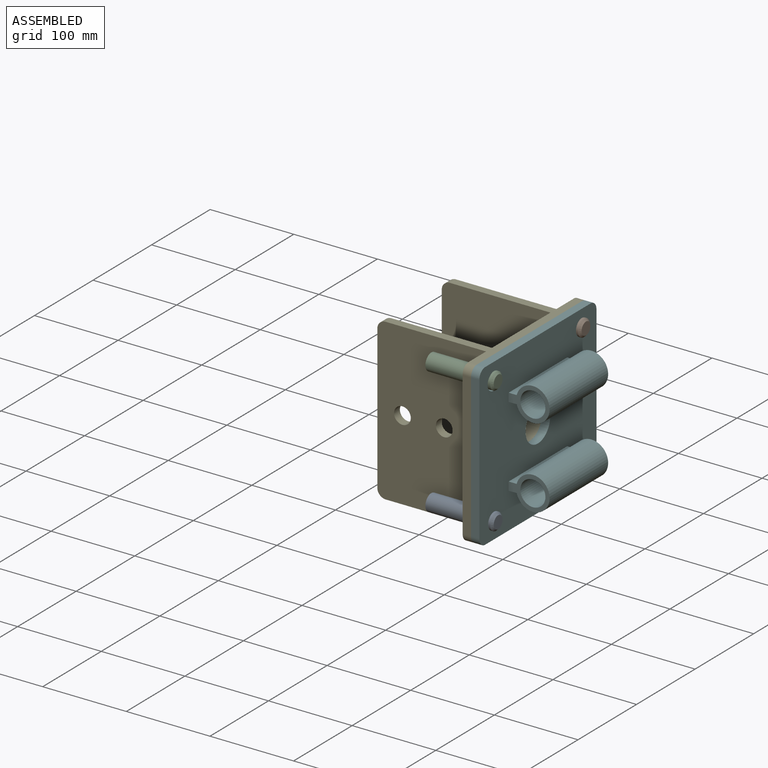
[diagram: assembled view]
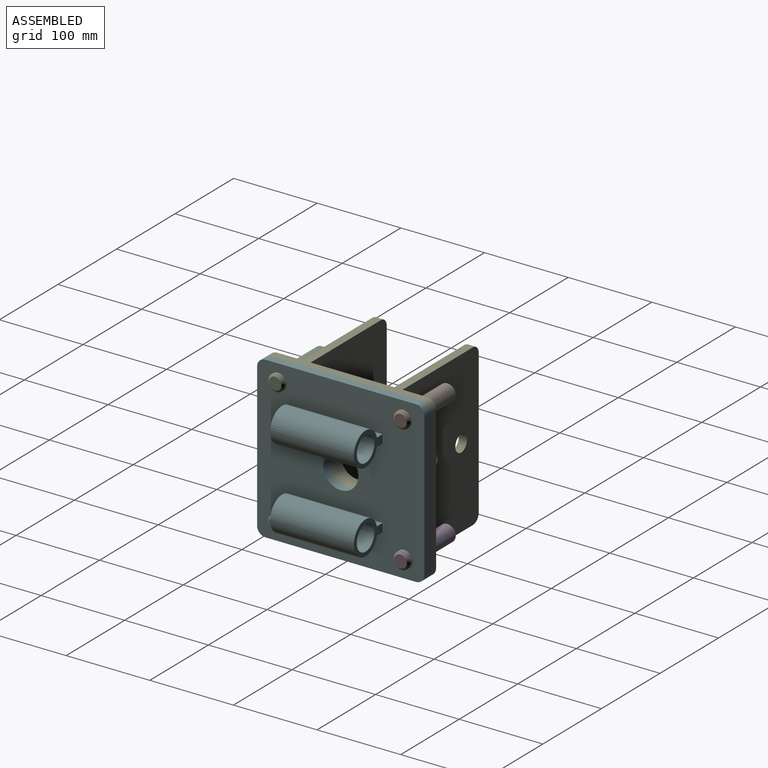
[diagram: assembled view, second angle]
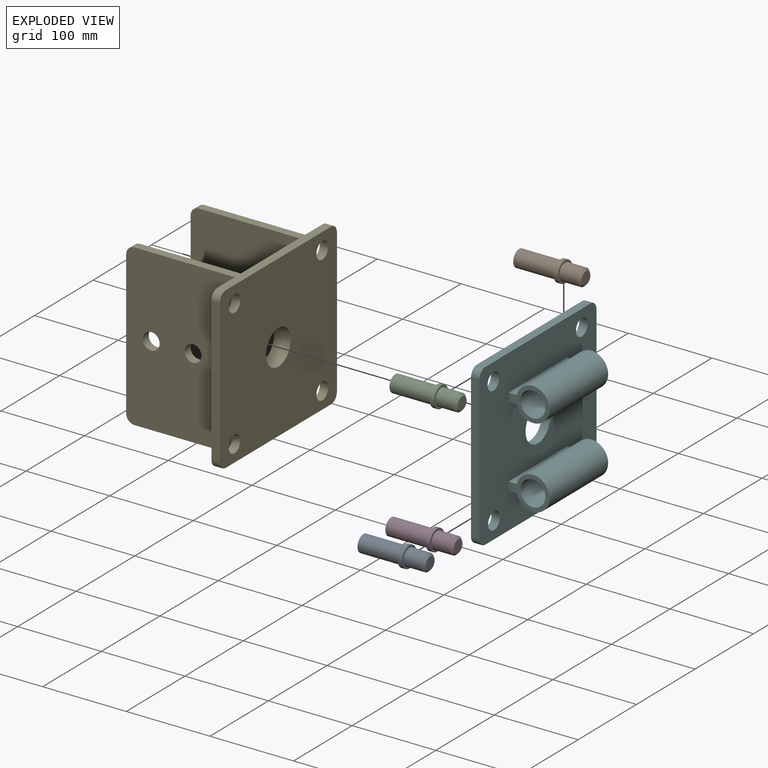
[diagram: exploded view]
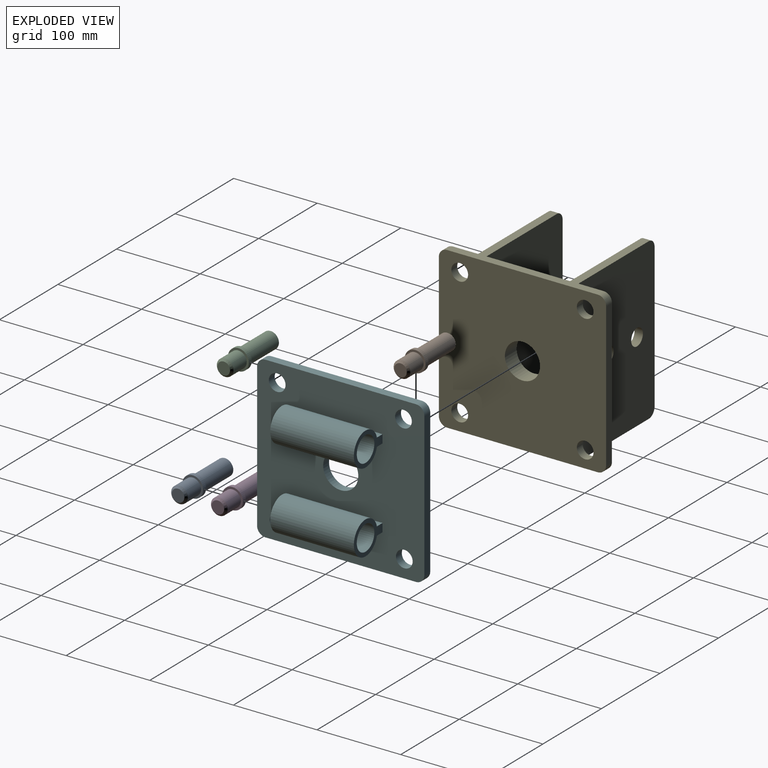
[diagram: exploded view, second angle]
ASSEMBLY  parts=6 mates=5
PART A: 8 faces, bbox 25x80x25 mm
  f0: cylinder r=10mm len=22.5mm, axis (0,1,0), area 1413.7mm2, adj f4,f7
  f1: plane 15x15mm, normal (0,1,0), area 176.7mm2, adj f7
  f2: cylinder r=12.5mm len=25mm, axis (0,1,0), area 392.7mm2, adj f3,f4
  f3: plane 25x25mm, normal (0,-1,0), area 176.7mm2, adj f2,f5
  f4: plane 25x25mm, normal (0,1,0), area 176.7mm2, adj f0,f2
  f5: cylinder r=10mm len=50mm, axis (0,1,0), area 3141.6mm2, adj f3,f6
  f6: plane 20x20mm, normal (0,-1,0), area 314.2mm2, adj f5
  f7: cone r=10mm half-angle=45deg, axis (0,-1,0), area 194.4mm2, adj f0,f1
PART B: same geometry as A
PART C: same geometry as A
PART D: same geometry as A
PART E: 34 faces, bbox 140x200x192 mm
  f0: plane 180x130mm, normal (0,0,1), area 4200mm2, adj f1,f5,f6,f7,f8,f14,f16,f17
  f1: plane 192x130mm, normal (0,1,0), area 24288.8mm2, adj f0,f2,f3,f9,f10,f13,f14,f20
  f2: plane 172x10mm, normal (-1,0,0), area 1720mm2, adj f1,f7,f13,f14
  f3: plane 180x130mm, normal (0,0,-1), area 4200mm2, adj f1,f5,f6,f7,f8,f13,f15,f17
  f4: plane 172x10mm, normal (-1,0,0), area 1720mm2, adj f5,f6,f15,f16
  f5: plane 192x130mm, normal (0,-1,0), area 24288.8mm2, adj f0,f3,f4,f11,f12,f15,f16,f18
  f6: plane 192x130mm, normal (0,1,0), area 24288.8mm2, adj f0,f3,f4,f8,f11,f12,f15,f16
  f7: plane 192x130mm, normal (0,-1,0), area 24288.8mm2, adj f0,f2,f3,f8,f9,f10,f13,f14
  f8: plane 192x100mm, normal (-1,0,0), area 16180.9mm2, adj f0,f3,f6,f7,f31
  f9: cylinder r=10mm len=20mm, axis (0,1,0), area 628.3mm2, adj f1,f7
  f10: cylinder r=10mm len=20mm, axis (0,1,0), area 628.3mm2, adj f1,f7
  f11: cylinder r=10mm len=20mm, axis (0,1,0), area 628.3mm2, adj f5,f6
  f12: cylinder r=10mm len=20mm, axis (0,1,0), area 628.3mm2, adj f5,f6
  f13: cylinder r=10mm len=10mm, axis (0,1,0), area 157.1mm2, adj f1,f2,f3,f7
  f14: cylinder r=10mm len=10mm, axis (0,-1,0), area 157.1mm2, adj f0,f1,f2,f7
  f15: cylinder r=10mm len=10mm, axis (0,1,0), area 157.1mm2, adj f3,f4,f5,f6
  f16: cylinder r=10mm len=10mm, axis (0,-1,0), area 157.1mm2, adj f0,f4,f5,f6
  f17: plane 200x192mm, normal (1,0,0), area 35672.1mm2, adj f0,f3,f19,f21,f22,f23,f24,f25
  f18: plane 192x40mm, normal (-1,0,0), area 7008.8mm2, adj f0,f3,f5,f19,f24,f25,f28,f29
  f19: plane 172x10mm, normal (0,-1,0), area 1720mm2, adj f17,f18,f24,f25
  f20: plane 192x40mm, normal (-1,0,0), area 7008.8mm2, adj f0,f1,f3,f21,f22,f23,f26,f27
  f21: plane 172x10mm, normal (0,1,0), area 1720mm2, adj f17,f20,f22,f23
  f22: cylinder r=10mm len=10mm, axis (1,0,0), area 157.1mm2, adj f0,f17,f20,f21
  f23: cylinder r=10mm len=10mm, axis (-1,0,0), area 157.1mm2, adj f3,f17,f20,f21
  f24: cylinder r=10mm len=10mm, axis (-1,0,0), area 157.1mm2, adj f3,f17,f18,f19
  f25: cylinder r=10mm len=10mm, axis (1,0,0), area 157.1mm2, adj f0,f17,f18,f19
  f26: cylinder r=10mm len=20mm, axis (1,0,0), area 628.3mm2, adj f17,f20
  f27: cylinder r=10mm len=20mm, axis (1,0,0), area 628.3mm2, adj f17,f20
  f28: cylinder r=10mm len=20mm, axis (1,0,0), area 628.3mm2, adj f17,f18
  f29: cylinder r=10mm len=20mm, axis (1,0,0), area 628.3mm2, adj f17,f18
  f30: cylinder r=21mm len=42mm, axis (1,0,0), area 2638.9mm2, adj f17,f32
  f31: cylinder r=31mm len=62mm, axis (1,0,0), area 1558.2mm2, adj f8,f33
  f32: plane 58x58mm, normal (-1,0,0), area 1256.6mm2, adj f30,f33
  f33: cone r=29mm half-angle=45deg, axis (1,0,0), area 533.1mm2, adj f31,f32
PART F: 27 faces, bbox 192x59x200 mm
  f0: plane 100x9.64mm, normal (-1,0,0), area 963.5mm2, adj f2,f21,f22,f24
  f1: plane 100x9.64mm, normal (1,0,0), area 963.5mm2, adj f2,f21,f22,f24
  f2: plane 200x192mm, normal (0,-1,0), area 33672.1mm2, adj f0,f1,f3,f4,f5,f6,f8,f9
  f3: plane 172x10mm, normal (0,0,-1), area 1720mm2, adj f2,f7,f8,f11
  f4: plane 180x10mm, normal (1,0,0), area 1800mm2, adj f2,f7,f8,f9
  f5: plane 172x10mm, normal (0,0,1), area 1720mm2, adj f2,f7,f9,f10
  f6: plane 180x10mm, normal (-1,0,0), area 1800mm2, adj f2,f7,f10,f11
  f7: plane 200x192mm, normal (0,1,0), area 35672.1mm2, adj f3,f4,f5,f6,f8,f9,f10,f11
  f8: cylinder r=10mm len=10mm, axis (0,-1,0), area 157.1mm2, adj f2,f3,f4,f7
  f9: cylinder r=10mm len=10mm, axis (0,1,0), area 157.1mm2, adj f2,f4,f5,f7
  f10: cylinder r=10mm len=10mm, axis (0,-1,0), area 157.1mm2, adj f2,f5,f6,f7
  f11: cylinder r=10mm len=10mm, axis (0,1,0), area 157.1mm2, adj f2,f3,f6,f7
  f12: cylinder r=21mm len=42mm, axis (0,-1,0), area 1319.5mm2, adj f2,f7
  f13: cylinder r=10mm len=20mm, axis (0,-1,0), area 628.3mm2, adj f2,f7
  f14: cylinder r=10mm len=20mm, axis (0,-1,0), area 628.3mm2, adj f2,f7
  f15: cylinder r=10mm len=20mm, axis (0,-1,0), area 628.3mm2, adj f2,f7
  f16: cylinder r=10mm len=20mm, axis (0,-1,0), area 628.3mm2, adj f2,f7
  f17: plane 100x9.64mm, normal (1,0,0), area 963.5mm2, adj f2,f18,f20,f23
  f18: plane 49x40mm, normal (0,0,1), area 641.9mm2, adj f2,f17,f19,f23,f26
  f19: plane 100x9.64mm, normal (-1,0,0), area 963.5mm2, adj f2,f18,f20,f23
  f20: plane 49x40mm, normal (0,0,-1), area 641.9mm2, adj f2,f17,f19,f23,f26
  f21: plane 49x40mm, normal (0,0,1), area 641.9mm2, adj f0,f1,f2,f24,f25
  f22: plane 49x40mm, normal (0,0,-1), area 641.9mm2, adj f0,f1,f2,f24,f25
  f23: cylinder r=20mm len=100mm, axis (0,0,1), area 11555.6mm2, adj f17,f18,f19,f20
  f24: cylinder r=20mm len=100mm, axis (0,0,1), area 11555.6mm2, adj f0,f1,f21,f22
  f25: cylinder r=15mm len=100mm, axis (0,0,1), area 9424.8mm2, adj f21,f22
  f26: cylinder r=15mm len=100mm, axis (0,0,1), area 9424.8mm2, adj f18,f20
PLACE A rot(axis=(-0.58,-0.58,-0.58),120deg) t=(77.63,-175.86,-30.64)mm
PLACE B rot(axis=(-0.58,-0.58,-0.58),120deg) t=(77.63,-25.86,121.36)mm
PLACE C rot(axis=(-0.58,-0.58,-0.58),120deg) t=(77.63,-175.86,121.36)mm
PLACE D rot(axis=(-0.58,-0.58,-0.58),120deg) t=(77.63,-25.86,-30.64)mm
PLACE E t=(72.63,-40.86,45.36)mm
PLACE F rot(axis=(-0.58,0.58,0.58),120deg) t=(62.63,-100.86,45.36)mm
MATE fastened C.f0 <-> E.f28  axis (1,0,0) through (52.63,-175.86,121.36)mm
MATE fastened F.f12 <-> E.f30  axis (-1,0,0) through (62.63,-100.86,45.36)mm
MATE fastened A.f0 <-> E.f29  axis (1,0,0) through (52.63,-175.86,-30.64)mm
MATE fastened D.f0 <-> E.f26  axis (1,0,0) through (52.63,-25.86,-30.64)mm
MATE fastened B.f0 <-> E.f27  axis (1,0,0) through (52.63,-25.86,121.36)mm
